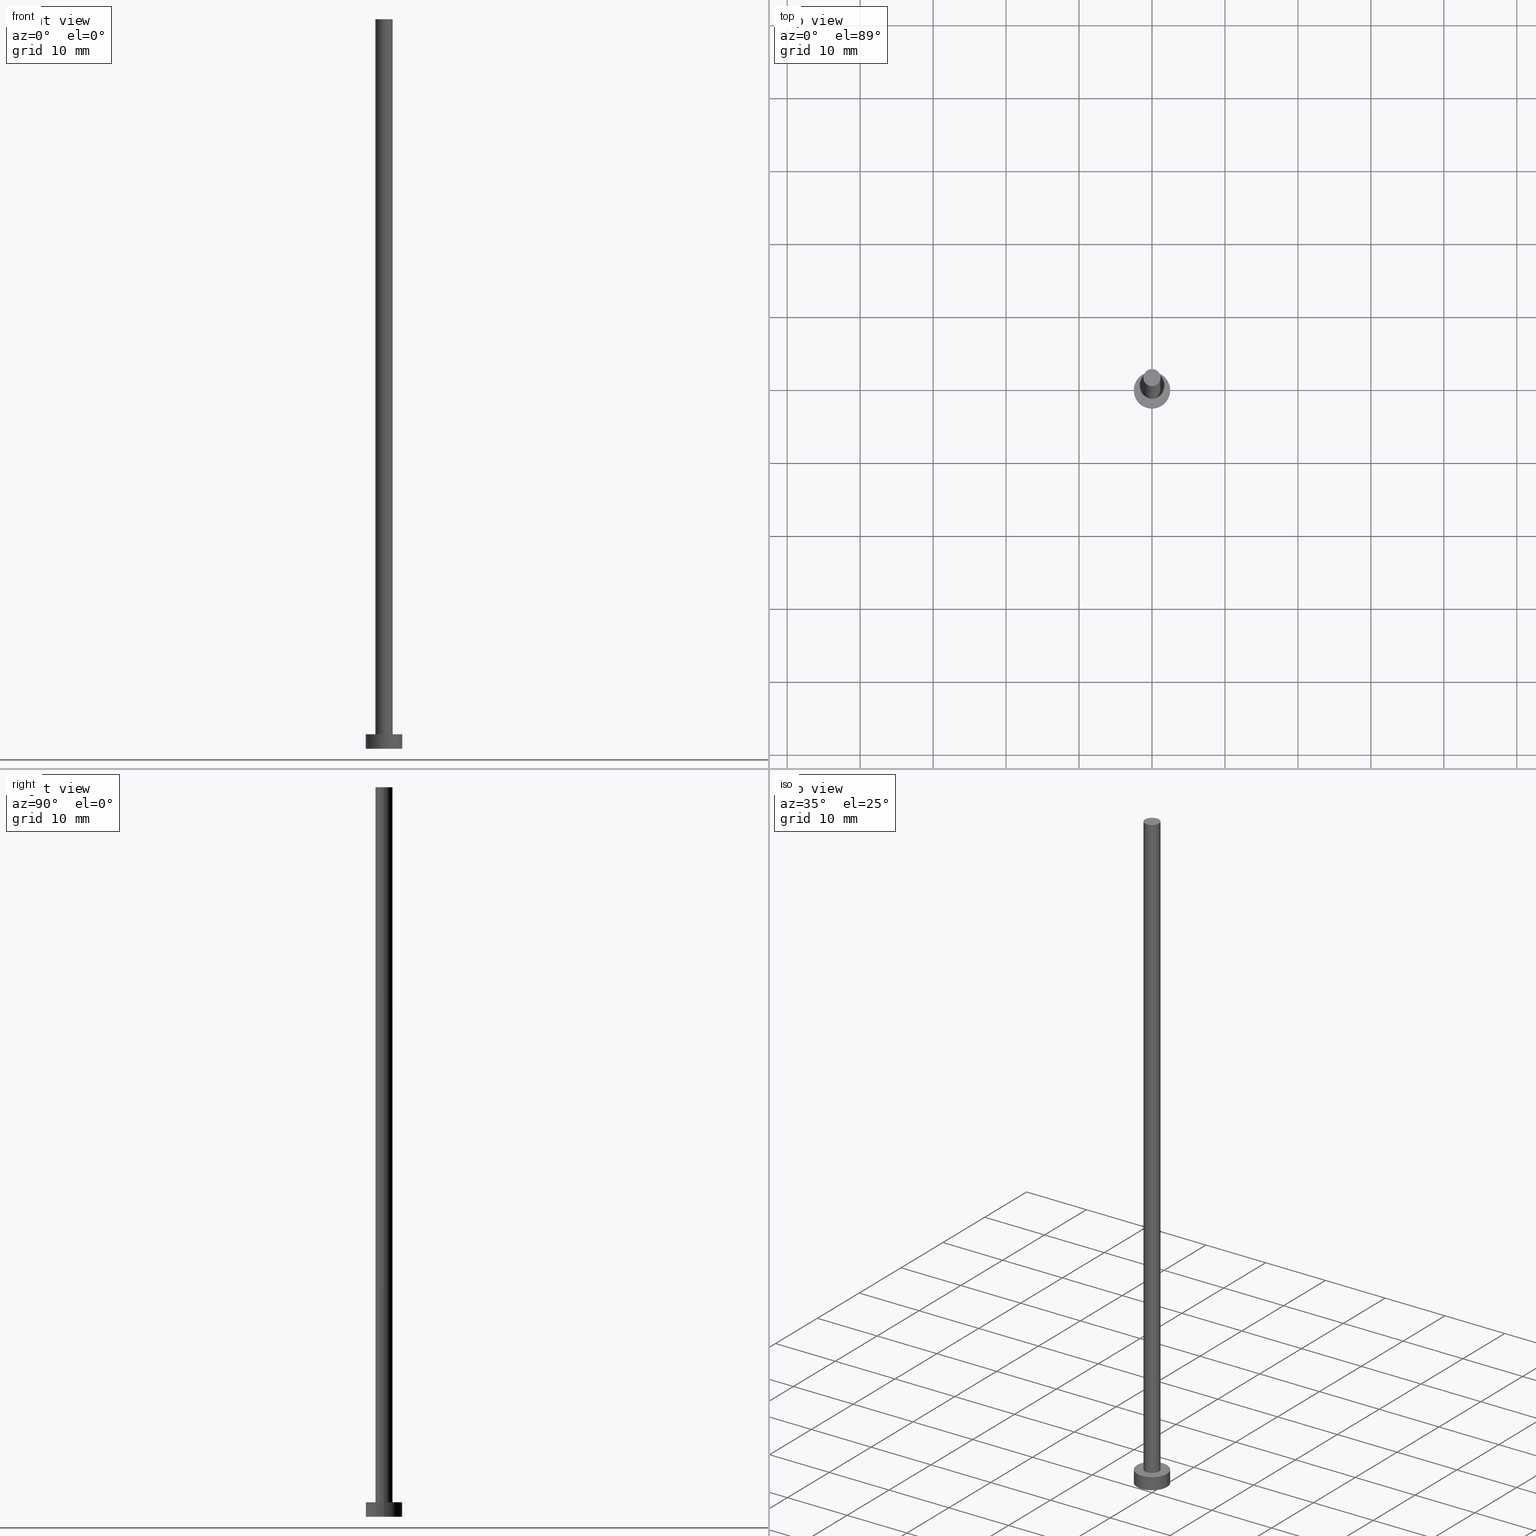
[diagram: canonical four-view strip — front | top / right | iso, engineering-drawing reading convention]
A machine part, canonical four-view strip (front | top / right | iso — engineering-drawing reading convention). The complete STEP part file that produces these views, byte-faithful:
ISO-10303-21;
HEADER;
FILE_DESCRIPTION (( 'STEP AP203' ),
    '1' );
FILE_NAME ('58e2.STEP',
    '2024-01-24T11:25:38',
    ( '' ),
    ( '' ),
    'SwSTEP 2.0',
    'SolidWorks 2019',
    '' );
FILE_SCHEMA (( 'CONFIG_CONTROL_DESIGN' ));
ENDSEC;

DATA;
#1 = DIRECTION ( 'NONE',  ( -0.000000000000000000, -0.000000000000000000, -1.000000000000000000 ) ) ;
#2 = ORIENTED_EDGE ( 'NONE', *, *, #136, .T. ) ;
#3 = ORGANIZATION ( 'NEUR�EN�', 'NEUR�EN�', '' ) ;
#4 = LINE ( 'NONE', #130, #234 ) ;
#5 = DIRECTION ( 'NONE',  ( 1.000000000000000000, 0.000000000000000000, 0.000000000000000000 ) ) ;
#6 = EDGE_CURVE ( 'NONE', #80, #147, #4, .T. ) ;
#7 = CYLINDRICAL_SURFACE ( 'NONE', #121, 1.175000000000000044 ) ;
#8 = CARTESIAN_POINT ( 'NONE',  ( 0.000000000000000000, 0.000000000000000000, 0.000000000000000000 ) ) ;
#9 = CARTESIAN_POINT ( 'NONE',  ( 0.000000000000000000, 0.000000000000000000, 100.0000000000000000 ) ) ;
#10 = SECURITY_CLASSIFICATION ( '', '', #70 ) ;
#11 = FACE_OUTER_BOUND ( 'NONE', #19, .T. ) ;
#12 = PERSON_AND_ORGANIZATION ( #162, #3 ) ;
#13 = PERSON_AND_ORGANIZATION_ROLE ( 'creator' ) ;
#14 = PERSON_AND_ORGANIZATION ( #162, #3 ) ;
#15 = EDGE_CURVE ( 'NONE', #108, #81, #204, .T. ) ;
#16 = DATE_AND_TIME ( #200, #87 ) ;
#17 = ORIENTED_EDGE ( 'NONE', *, *, #148, .T. ) ;
#18 = EDGE_LOOP ( 'NONE', ( #17, #57 ) ) ;
#19 = EDGE_LOOP ( 'NONE', ( #171, #170, #39, #190 ) ) ;
#20 = EDGE_CURVE ( 'NONE', #108, #125, #27, .T. ) ;
#21 = ORIENTED_EDGE ( 'NONE', *, *, #15, .F. ) ;
#22 = ORIENTED_EDGE ( 'NONE', *, *, #122, .T. ) ;
#23 = DIRECTION ( 'NONE',  ( -1.000000000000000000, 0.000000000000000000, 0.000000000000000000 ) ) ;
#24 = DIRECTION ( 'NONE',  ( -0.000000000000000000, -0.000000000000000000, -1.000000000000000000 ) ) ;
#25 = CARTESIAN_POINT ( 'NONE',  ( -2.500000000000000000, 0.000000000000000000, 2.000000000000000000 ) ) ;
#26 = DIRECTION ( 'NONE',  ( 0.000000000000000000, 0.000000000000000000, 1.000000000000000000 ) ) ;
#27 = CIRCLE ( 'NONE', #169, 2.500000000000000000 ) ;
#28 = CARTESIAN_POINT ( 'NONE',  ( 0.000000000000000000, 0.000000000000000000, 0.000000000000000000 ) ) ;
#29 = APPROVAL ( #233, 'NEUR�EN�' ) ;
#30 = FACE_OUTER_BOUND ( 'NONE', #239, .T. ) ;
#31 = LOCAL_TIME ( 12, 25, 38.00000000000000000, #96 ) ;
#32 = PERSON_AND_ORGANIZATION_ROLE ( 'creator' ) ;
#33 = PRODUCT_DEFINITION ( 'NEZN�M�', '', #201, #55 ) ;
#34 = CC_DESIGN_APPROVAL ( #161, ( #201 ) ) ;
#35 = ORIENTED_EDGE ( 'NONE', *, *, #145, .F. ) ;
#36 = DATE_TIME_ROLE ( 'classification_date' ) ;
#37 = EDGE_LOOP ( 'NONE', ( #82, #151 ) ) ;
#38 = AXIS2_PLACEMENT_3D ( 'NONE', #176, #131, #23 ) ;
#39 = ORIENTED_EDGE ( 'NONE', *, *, #6, .T. ) ;
#40 = EDGE_CURVE ( 'NONE', #81, #220, #188, .T. ) ;
#41 = CARTESIAN_POINT ( 'NONE',  ( 0.000000000000000000, 0.000000000000000000, 2.000000000000000000 ) ) ;
#42 = FACE_BOUND ( 'NONE', #105, .T. ) ;
#43 = AXIS2_PLACEMENT_3D ( 'NONE', #8, #229, #223 ) ;
#44 = DIRECTION ( 'NONE',  ( 1.000000000000000000, 0.000000000000000000, 0.000000000000000000 ) ) ;
#45 = CC_DESIGN_DATE_AND_TIME_ASSIGNMENT ( #167, #36, ( #10 ) ) ;
#46 = DIRECTION ( 'NONE',  ( -0.000000000000000000, -0.000000000000000000, -1.000000000000000000 ) ) ;
#47 = DIRECTION ( 'NONE',  ( 0.000000000000000000, 0.000000000000000000, 1.000000000000000000 ) ) ;
#48 = VECTOR ( 'NONE', #207, 1000.000000000000000 ) ;
#49 = AXIS2_PLACEMENT_3D ( 'NONE', #134, #74, #252 ) ;
#50 = DIRECTION ( 'NONE',  ( 0.000000000000000000, 0.000000000000000000, 1.000000000000000000 ) ) ;
#51 = CC_DESIGN_PERSON_AND_ORGANIZATION_ASSIGNMENT ( #231, #164, ( #92 ) ) ;
#52 = DATE_TIME_ROLE ( 'creation_date' ) ;
#53 = DIRECTION ( 'NONE',  ( -0.000000000000000000, -0.000000000000000000, -1.000000000000000000 ) ) ;
#54 = AXIS2_PLACEMENT_3D ( 'NONE', #99, #53, #73 ) ;
#55 = DESIGN_CONTEXT ( 'detailed design', #142, 'design' ) ;
#56 = ORIENTED_EDGE ( 'NONE', *, *, #15, .T. ) ;
#57 = ORIENTED_EDGE ( 'NONE', *, *, #183, .T. ) ;
#58 = CIRCLE ( 'NONE', #133, 1.175000000000000044 ) ;
#59 = EDGE_CURVE ( 'NONE', #125, #220, #68, .T. ) ;
#60 = SHAPE_DEFINITION_REPRESENTATION ( #89, #116 ) ;
#61 = ORIENTED_EDGE ( 'NONE', *, *, #187, .T. ) ;
#62 = AXIS2_PLACEMENT_3D ( 'NONE', #157, #243, #178 ) ;
#63 = CARTESIAN_POINT ( 'NONE',  ( 2.500000000000000000, 3.061616997868383141E-16, 2.000000000000000000 ) ) ;
#64 = LINE ( 'NONE', #158, #97 ) ;
#65 = DIRECTION ( 'NONE',  ( 1.000000000000000000, 0.000000000000000000, 0.000000000000000000 ) ) ;
#66 = AXIS2_PLACEMENT_3D ( 'NONE', #210, #26, #44 ) ;
#67 = APPROVAL_PERSON_ORGANIZATION ( #76, #117, #103 ) ;
#68 = LINE ( 'NONE', #191, #205 ) ;
#69 = FACE_OUTER_BOUND ( 'NONE', #18, .T. ) ;
#70 = SECURITY_CLASSIFICATION_LEVEL ( 'unclassified' ) ;
#71 = LOCAL_TIME ( 12, 25, 38.00000000000000000, #123 ) ;
#72 = DATE_AND_TIME ( #249, #71 ) ;
#73 = DIRECTION ( 'NONE',  ( -1.000000000000000000, 0.000000000000000000, 0.000000000000000000 ) ) ;
#74 = DIRECTION ( 'NONE',  ( 0.000000000000000000, 0.000000000000000000, 1.000000000000000000 ) ) ;
#75 = APPROVAL_STATUS ( 'not_yet_approved' ) ;
#76 = PERSON_AND_ORGANIZATION ( #162, #3 ) ;
#77 = MANIFOLD_SOLID_BREP ( 'P�idat vysunut�m3', #251 ) ;
#78 = ORIENTED_EDGE ( 'NONE', *, *, #187, .F. ) ;
#79 = CALENDAR_DATE ( 2024, 24, 1 ) ;
#80 = VERTEX_POINT ( 'NONE', #137 ) ;
#81 = VERTEX_POINT ( 'NONE', #194 ) ;
#82 = ORIENTED_EDGE ( 'NONE', *, *, #40, .F. ) ;
#83 = ADVANCED_FACE ( 'NONE', ( #115 ), #228, .T. ) ;
#84 = CARTESIAN_POINT ( 'NONE',  ( -2.500000000000000000, 0.000000000000000000, 2.000000000000000000 ) ) ;
#85 = CARTESIAN_POINT ( 'NONE',  ( 0.000000000000000000, 0.000000000000000000, 2.000000000000000000 ) ) ;
#86 = AXIS2_PLACEMENT_3D ( 'NONE', #85, #195, #245 ) ;
#87 = LOCAL_TIME ( 12, 25, 38.00000000000000000, #124 ) ;
#88 = DIRECTION ( 'NONE',  ( 0.000000000000000000, 0.000000000000000000, 1.000000000000000000 ) ) ;
#89 = PRODUCT_DEFINITION_SHAPE ( 'NONE', 'NONE',  #33 ) ;
#90 = PLANE ( 'NONE',  #165 ) ;
#91 = PLANE ( 'NONE',  #43 ) ;
#92 = PRODUCT ( '58e2', '58e2', '', ( #197 ) ) ;
#93 =( GEOMETRIC_REPRESENTATION_CONTEXT ( 3 ) GLOBAL_UNCERTAINTY_ASSIGNED_CONTEXT ( ( #172 ) ) GLOBAL_UNIT_ASSIGNED_CONTEXT ( ( #141, #215, #140 ) ) REPRESENTATION_CONTEXT ( 'NONE', 'WORKASPACE' ) );
#94 = DIRECTION ( 'NONE',  ( -0.000000000000000000, -0.000000000000000000, -1.000000000000000000 ) ) ;
#95 = PERSON_AND_ORGANIZATION_ROLE ( 'design_supplier' ) ;
#96 = COORDINATED_UNIVERSAL_TIME_OFFSET ( 1, 0, .AHEAD. ) ;
#97 = VECTOR ( 'NONE', #46, 1000.000000000000000 ) ;
#98 = PERSON_AND_ORGANIZATION ( #162, #3 ) ;
#99 = CARTESIAN_POINT ( 'NONE',  ( 0.000000000000000000, 0.000000000000000000, 2.000000000000000000 ) ) ;
#100 = CIRCLE ( 'NONE', #221, 2.500000000000000000 ) ;
#101 = PRODUCT_RELATED_PRODUCT_CATEGORY ( 'detail', '', ( #92 ) ) ;
#102 = ORIENTED_EDGE ( 'NONE', *, *, #20, .F. ) ;
#103 = APPROVAL_ROLE ( '' ) ;
#104 = APPROVAL_DATE_TIME ( #16, #117 ) ;
#105 = EDGE_LOOP ( 'NONE', ( #35, #222 ) ) ;
#106 = AXIS2_PLACEMENT_3D ( 'NONE', #179, #50, #139 ) ;
#107 = ADVANCED_FACE ( 'NONE', ( #69 ), #90, .T. ) ;
#108 = VERTEX_POINT ( 'NONE', #25 ) ;
#109 = DIRECTION ( 'NONE',  ( 0.000000000000000000, 0.000000000000000000, 1.000000000000000000 ) ) ;
#110 = CARTESIAN_POINT ( 'NONE',  ( 0.000000000000000000, 0.000000000000000000, 100.0000000000000000 ) ) ;
#111 = AXIS2_PLACEMENT_3D ( 'NONE', #28, #196, #120 ) ;
#112 = ADVANCED_FACE ( 'NONE', ( #211 ), #152, .T. ) ;
#113 = CARTESIAN_POINT ( 'NONE',  ( 0.000000000000000000, 0.000000000000000000, 0.000000000000000000 ) ) ;
#114 = DIRECTION ( 'NONE',  ( 1.000000000000000000, 0.000000000000000000, 0.000000000000000000 ) ) ;
#115 = FACE_OUTER_BOUND ( 'NONE', #146, .T. ) ;
#116 = ADVANCED_BREP_SHAPE_REPRESENTATION ( '58e2', ( #77, #111 ), #93 ) ;
#117 = APPROVAL ( #216, 'NEUR�EN�' ) ;
#118 = CIRCLE ( 'NONE', #106, 1.175000000000000044 ) ;
#119 = PERSON_AND_ORGANIZATION ( #162, #3 ) ;
#120 = DIRECTION ( 'NONE',  ( 1.000000000000000000, 0.000000000000000000, 0.000000000000000000 ) ) ;
#121 = AXIS2_PLACEMENT_3D ( 'NONE', #173, #24, #247 ) ;
#122 = EDGE_CURVE ( 'NONE', #186, #206, #64, .T. ) ;
#123 = COORDINATED_UNIVERSAL_TIME_OFFSET ( 1, 0, .AHEAD. ) ;
#124 = COORDINATED_UNIVERSAL_TIME_OFFSET ( 1, 0, .AHEAD. ) ;
#125 = VERTEX_POINT ( 'NONE', #63 ) ;
#126 = ORIENTED_EDGE ( 'NONE', *, *, #40, .T. ) ;
#127 = APPLICATION_CONTEXT ( 'configuration controlled 3d designs of mechanical parts and assemblies' ) ;
#128 = CC_DESIGN_PERSON_AND_ORGANIZATION_ASSIGNMENT ( #160, #32, ( #33 ) ) ;
#129 = APPROVAL_PERSON_ORGANIZATION ( #14, #161, #248 ) ;
#130 = CARTESIAN_POINT ( 'NONE',  ( -1.175000000000000044, 0.000000000000000000, 100.0000000000000000 ) ) ;
#131 = DIRECTION ( 'NONE',  ( -0.000000000000000000, -0.000000000000000000, -1.000000000000000000 ) ) ;
#132 = FACE_OUTER_BOUND ( 'NONE', #241, .T. ) ;
#133 = AXIS2_PLACEMENT_3D ( 'NONE', #9, #109, #5 ) ;
#134 = CARTESIAN_POINT ( 'NONE',  ( 0.000000000000000000, 0.000000000000000000, 2.000000000000000000 ) ) ;
#135 = DIRECTION ( 'NONE',  ( 1.000000000000000000, 0.000000000000000000, 0.000000000000000000 ) ) ;
#136 = EDGE_CURVE ( 'NONE', #220, #81, #185, .T. ) ;
#137 = CARTESIAN_POINT ( 'NONE',  ( -1.175000000000000044, 0.000000000000000000, 100.0000000000000000 ) ) ;
#138 = CIRCLE ( 'NONE', #226, 1.175000000000000044 ) ;
#139 = DIRECTION ( 'NONE',  ( 1.000000000000000000, 0.000000000000000000, 0.000000000000000000 ) ) ;
#140 =( NAMED_UNIT ( * ) SI_UNIT ( $, .STERADIAN. ) SOLID_ANGLE_UNIT ( ) );
#141 =( LENGTH_UNIT ( ) NAMED_UNIT ( * ) SI_UNIT ( .MILLI., .METRE. ) );
#142 = APPLICATION_CONTEXT ( 'configuration controlled 3d designs of mechanical parts and assemblies' ) ;
#143 = CALENDAR_DATE ( 2024, 24, 1 ) ;
#144 = APPROVAL_DATE_TIME ( #236, #161 ) ;
#145 = EDGE_CURVE ( 'NONE', #147, #206, #150, .T. ) ;
#146 = EDGE_LOOP ( 'NONE', ( #78, #240, #2, #21 ) ) ;
#147 = VERTEX_POINT ( 'NONE', #212 ) ;
#148 = EDGE_CURVE ( 'NONE', #80, #186, #58, .T. ) ;
#149 = ORIENTED_EDGE ( 'NONE', *, *, #59, .F. ) ;
#150 = CIRCLE ( 'NONE', #86, 1.175000000000000044 ) ;
#151 = ORIENTED_EDGE ( 'NONE', *, *, #136, .F. ) ;
#152 = CYLINDRICAL_SURFACE ( 'NONE', #62, 1.175000000000000044 ) ;
#153 = ADVANCED_FACE ( 'NONE', ( #11 ), #7, .T. ) ;
#154 = CARTESIAN_POINT ( 'NONE',  ( 1.175000000000000044, 1.438959988998139914E-16, 100.0000000000000000 ) ) ;
#155 = CARTESIAN_POINT ( 'NONE',  ( 1.175000000000000044, 1.438959988998139914E-16, 2.000000000000000000 ) ) ;
#156 = ADVANCED_FACE ( 'NONE', ( #242 ), #91, .F. ) ;
#157 = CARTESIAN_POINT ( 'NONE',  ( 0.000000000000000000, 0.000000000000000000, 100.0000000000000000 ) ) ;
#158 = CARTESIAN_POINT ( 'NONE',  ( 1.175000000000000044, 1.438959988998139914E-16, 100.0000000000000000 ) ) ;
#159 = CC_DESIGN_SECURITY_CLASSIFICATION ( #10, ( #201 ) ) ;
#160 = PERSON_AND_ORGANIZATION ( #162, #3 ) ;
#161 = APPROVAL ( #75, 'NEUR�EN�' ) ;
#162 = PERSON ( 'NEUR�EN�', 'NEUR�EN�', 'NEUR�EN�', ('NEUR�EN�'), ('NEUR�EN�'), ('NEUR�EN�') ) ;
#163 = CYLINDRICAL_SURFACE ( 'NONE', #54, 2.500000000000000000 ) ;
#164 = PERSON_AND_ORGANIZATION_ROLE ( 'design_owner' ) ;
#165 = AXIS2_PLACEMENT_3D ( 'NONE', #110, #192, #208 ) ;
#166 = CALENDAR_DATE ( 2024, 24, 1 ) ;
#167 = DATE_AND_TIME ( #79, #255 ) ;
#168 = EDGE_LOOP ( 'NONE', ( #202, #22, #203, #217 ) ) ;
#169 = AXIS2_PLACEMENT_3D ( 'NONE', #41, #175, #114 ) ;
#170 = ORIENTED_EDGE ( 'NONE', *, *, #148, .F. ) ;
#171 = ORIENTED_EDGE ( 'NONE', *, *, #122, .F. ) ;
#172 = UNCERTAINTY_MEASURE_WITH_UNIT (LENGTH_MEASURE( 1.000000000000000082E-05 ), #141, 'distance_accuracy_value', 'NONE');
#173 = CARTESIAN_POINT ( 'NONE',  ( 0.000000000000000000, 0.000000000000000000, 100.0000000000000000 ) ) ;
#174 = DIRECTION ( 'NONE',  ( 1.000000000000000000, 0.000000000000000000, 0.000000000000000000 ) ) ;
#175 = DIRECTION ( 'NONE',  ( 0.000000000000000000, 0.000000000000000000, 1.000000000000000000 ) ) ;
#176 = CARTESIAN_POINT ( 'NONE',  ( 0.000000000000000000, 0.000000000000000000, 2.000000000000000000 ) ) ;
#177 = CC_DESIGN_DATE_AND_TIME_ASSIGNMENT ( #72, #52, ( #33 ) ) ;
#178 = DIRECTION ( 'NONE',  ( -1.000000000000000000, 0.000000000000000000, 0.000000000000000000 ) ) ;
#179 = CARTESIAN_POINT ( 'NONE',  ( 0.000000000000000000, 0.000000000000000000, 2.000000000000000000 ) ) ;
#180 = DATE_AND_TIME ( #143, #31 ) ;
#181 = AXIS2_PLACEMENT_3D ( 'NONE', #113, #246, #135 ) ;
#182 = PERSON_AND_ORGANIZATION ( #162, #3 ) ;
#183 = EDGE_CURVE ( 'NONE', #186, #80, #138, .T. ) ;
#184 = APPLICATION_PROTOCOL_DEFINITION ( 'international standard', 'config_control_design', 1994, #127 ) ;
#185 = CIRCLE ( 'NONE', #181, 2.500000000000000000 ) ;
#186 = VERTEX_POINT ( 'NONE', #154 ) ;
#187 = EDGE_CURVE ( 'NONE', #125, #108, #100, .T. ) ;
#188 = CIRCLE ( 'NONE', #66, 2.500000000000000000 ) ;
#189 = LOCAL_TIME ( 12, 25, 38.00000000000000000, #232 ) ;
#190 = ORIENTED_EDGE ( 'NONE', *, *, #145, .T. ) ;
#191 = CARTESIAN_POINT ( 'NONE',  ( 2.500000000000000000, 3.061616997868383141E-16, 2.000000000000000000 ) ) ;
#192 = DIRECTION ( 'NONE',  ( 0.000000000000000000, 0.000000000000000000, 1.000000000000000000 ) ) ;
#193 = CARTESIAN_POINT ( 'NONE',  ( 0.000000000000000000, 0.000000000000000000, 100.0000000000000000 ) ) ;
#194 = CARTESIAN_POINT ( 'NONE',  ( -2.500000000000000000, 0.000000000000000000, 0.000000000000000000 ) ) ;
#195 = DIRECTION ( 'NONE',  ( 0.000000000000000000, 0.000000000000000000, 1.000000000000000000 ) ) ;
#196 = DIRECTION ( 'NONE',  ( 0.000000000000000000, 0.000000000000000000, 1.000000000000000000 ) ) ;
#197 = MECHANICAL_CONTEXT ( 'NONE', #127, 'mechanical' ) ;
#198 = APPROVAL_ROLE ( '' ) ;
#199 = APPLICATION_PROTOCOL_DEFINITION ( 'international standard', 'config_control_design', 1994, #142 ) ;
#200 = CALENDAR_DATE ( 2024, 24, 1 ) ;
#201 = PRODUCT_DEFINITION_FORMATION_WITH_SPECIFIED_SOURCE ( 'LIBOVOLN�', '', #92, .NOT_KNOWN. ) ;
#202 = ORIENTED_EDGE ( 'NONE', *, *, #183, .F. ) ;
#203 = ORIENTED_EDGE ( 'NONE', *, *, #225, .T. ) ;
#204 = LINE ( 'NONE', #84, #48 ) ;
#205 = VECTOR ( 'NONE', #94, 1000.000000000000000 ) ;
#206 = VERTEX_POINT ( 'NONE', #155 ) ;
#207 = DIRECTION ( 'NONE',  ( -0.000000000000000000, -0.000000000000000000, -1.000000000000000000 ) ) ;
#208 = DIRECTION ( 'NONE',  ( 1.000000000000000000, 0.000000000000000000, -0.000000000000000000 ) ) ;
#209 = CC_DESIGN_PERSON_AND_ORGANIZATION_ASSIGNMENT ( #98, #219, ( #10 ) ) ;
#210 = CARTESIAN_POINT ( 'NONE',  ( 0.000000000000000000, 0.000000000000000000, 0.000000000000000000 ) ) ;
#211 = FACE_OUTER_BOUND ( 'NONE', #168, .T. ) ;
#212 = CARTESIAN_POINT ( 'NONE',  ( -1.175000000000000044, 0.000000000000000000, 2.000000000000000000 ) ) ;
#213 = CC_DESIGN_PERSON_AND_ORGANIZATION_ASSIGNMENT ( #119, #13, ( #201 ) ) ;
#214 = CC_DESIGN_APPROVAL ( #117, ( #10 ) ) ;
#215 =( NAMED_UNIT ( * ) PLANE_ANGLE_UNIT ( ) SI_UNIT ( $, .RADIAN. ) );
#216 = APPROVAL_STATUS ( 'not_yet_approved' ) ;
#217 = ORIENTED_EDGE ( 'NONE', *, *, #6, .F. ) ;
#218 = ADVANCED_FACE ( 'NONE', ( #42, #132 ), #227, .T. ) ;
#219 = PERSON_AND_ORGANIZATION_ROLE ( 'classification_officer' ) ;
#220 = VERTEX_POINT ( 'NONE', #253 ) ;
#221 = AXIS2_PLACEMENT_3D ( 'NONE', #224, #47, #65 ) ;
#222 = ORIENTED_EDGE ( 'NONE', *, *, #225, .F. ) ;
#223 = DIRECTION ( 'NONE',  ( 1.000000000000000000, 0.000000000000000000, -0.000000000000000000 ) ) ;
#224 = CARTESIAN_POINT ( 'NONE',  ( 0.000000000000000000, 0.000000000000000000, 2.000000000000000000 ) ) ;
#225 = EDGE_CURVE ( 'NONE', #206, #147, #118, .T. ) ;
#226 = AXIS2_PLACEMENT_3D ( 'NONE', #193, #88, #174 ) ;
#227 = PLANE ( 'NONE',  #49 ) ;
#228 = CYLINDRICAL_SURFACE ( 'NONE', #38, 2.500000000000000000 ) ;
#229 = DIRECTION ( 'NONE',  ( 0.000000000000000000, 0.000000000000000000, 1.000000000000000000 ) ) ;
#230 = CC_DESIGN_PERSON_AND_ORGANIZATION_ASSIGNMENT ( #12, #95, ( #201 ) ) ;
#231 = PERSON_AND_ORGANIZATION ( #162, #3 ) ;
#232 = COORDINATED_UNIVERSAL_TIME_OFFSET ( 1, 0, .AHEAD. ) ;
#233 = APPROVAL_STATUS ( 'not_yet_approved' ) ;
#234 = VECTOR ( 'NONE', #1, 1000.000000000000000 ) ;
#235 = APPROVAL_PERSON_ORGANIZATION ( #182, #29, #198 ) ;
#236 = DATE_AND_TIME ( #166, #189 ) ;
#237 = ORIENTED_EDGE ( 'NONE', *, *, #20, .T. ) ;
#238 = COORDINATED_UNIVERSAL_TIME_OFFSET ( 1, 0, .AHEAD. ) ;
#239 = EDGE_LOOP ( 'NONE', ( #149, #102, #56, #126 ) ) ;
#240 = ORIENTED_EDGE ( 'NONE', *, *, #59, .T. ) ;
#241 = EDGE_LOOP ( 'NONE', ( #237, #61 ) ) ;
#242 = FACE_OUTER_BOUND ( 'NONE', #37, .T. ) ;
#243 = DIRECTION ( 'NONE',  ( -0.000000000000000000, -0.000000000000000000, -1.000000000000000000 ) ) ;
#244 = ADVANCED_FACE ( 'NONE', ( #30 ), #163, .T. ) ;
#245 = DIRECTION ( 'NONE',  ( 1.000000000000000000, 0.000000000000000000, 0.000000000000000000 ) ) ;
#246 = DIRECTION ( 'NONE',  ( 0.000000000000000000, 0.000000000000000000, 1.000000000000000000 ) ) ;
#247 = DIRECTION ( 'NONE',  ( -1.000000000000000000, 0.000000000000000000, 0.000000000000000000 ) ) ;
#248 = APPROVAL_ROLE ( '' ) ;
#249 = CALENDAR_DATE ( 2024, 24, 1 ) ;
#250 = CC_DESIGN_APPROVAL ( #29, ( #33 ) ) ;
#251 = CLOSED_SHELL ( 'NONE', ( #112, #83, #244, #218, #156, #153, #107 ) ) ;
#252 = DIRECTION ( 'NONE',  ( 1.000000000000000000, 0.000000000000000000, -0.000000000000000000 ) ) ;
#253 = CARTESIAN_POINT ( 'NONE',  ( 2.500000000000000000, 3.061616997868383141E-16, 0.000000000000000000 ) ) ;
#254 = APPROVAL_DATE_TIME ( #180, #29 ) ;
#255 = LOCAL_TIME ( 12, 25, 38.00000000000000000, #238 ) ;
ENDSEC;
END-ISO-10303-21;
